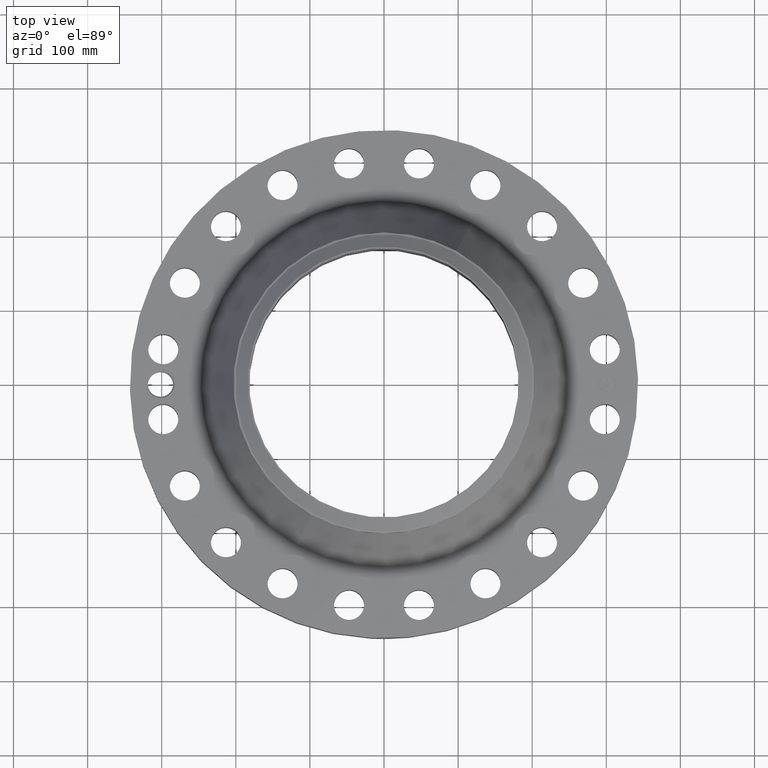
[diagram: clean part render]
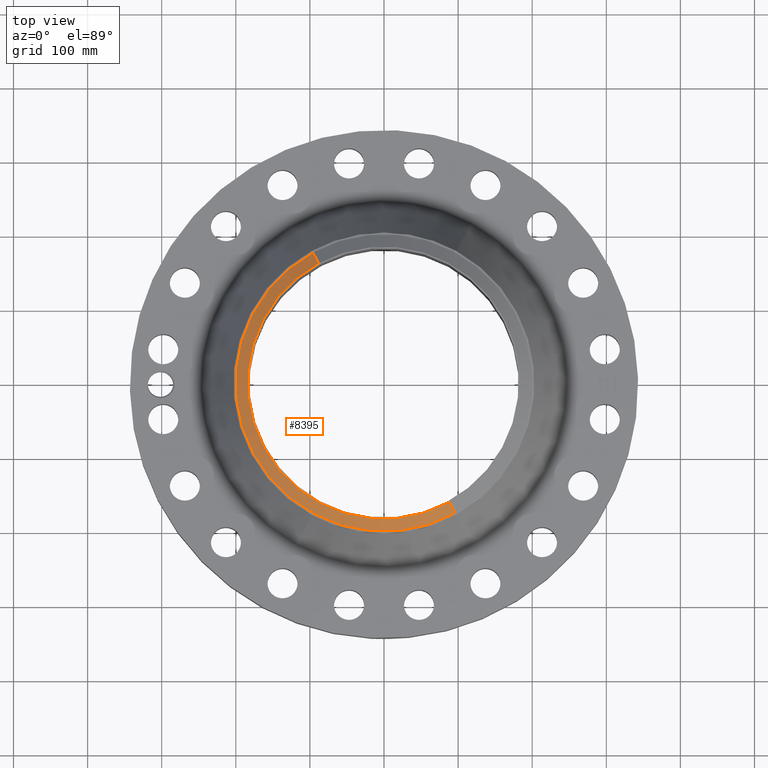
[diagram: same view with one face highlighted and labeled with its STEP entity id]
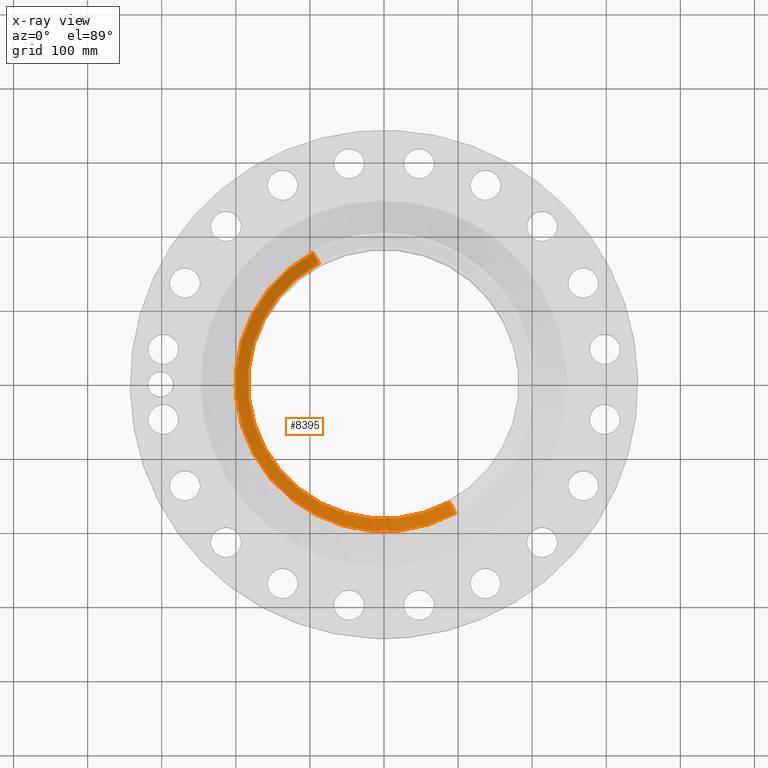
[diagram: x-ray of the same camera — body ghosted, the highlighted face saturated]
A machine part, top view. The second image highlights one B-rep face of the part: STEP entity #8395.
The next image is the same camera in x-ray: the body ghosted, the highlighted face saturated — about 0% of this face is hidden behind the body in this view.
In plain terms, the highlighted conical surface has half-angle 52.5 deg.
Its self-contained STEP definition (entity closure, byte-faithful):
#4817=AXIS2_PLACEMENT_3D('Circle Axis2P3D',#4815,#4816,$) ;
#8368=AXIS2_PLACEMENT_3D('Cone Axis2P3D',#8365,#8366,#8367) ;
#8379=AXIS2_PLACEMENT_3D('Circle Axis2P3D',#8377,#8378,$) ;
#4810=CARTESIAN_POINT('Vertex',(3.46851919668,-6.34908180204,7.25000000003)) ;
#4812=CARTESIAN_POINT('Vertex',(-3.46851919668,6.34908180204,7.25000000003)) ;
#4815=CARTESIAN_POINT('Axis2P3D Location',(0.,0.,7.25000000003)) ;
#8365=CARTESIAN_POINT('Axis2P3D Location',(0.,0.,7.25000000003)) ;
#8370=CARTESIAN_POINT('Line Origine',(-3.62346049923,6.63269995394,7.00201437259)) ;
#8374=CARTESIAN_POINT('Vertex',(-3.77840180178,6.91631810585,6.75402874516)) ;
#8377=CARTESIAN_POINT('Axis2P3D Location',(0.,0.,6.75402874516)) ;
#8381=CARTESIAN_POINT('Vertex',(3.77840180178,-6.91631810585,6.75402874516)) ;
#8384=CARTESIAN_POINT('Line Origine',(3.62346049923,-6.63269995394,7.00201437259)) ;
#4816=DIRECTION('Axis2P3D Direction',(0.,0.,-0.0393700787402)) ;
#8366=DIRECTION('Axis2P3D Direction',(-0.,-0.,-0.0393700787402)) ;
#8367=DIRECTION('Axis2P3D XDirection',(-0.0188750212049,0.0345504945626,0.)) ;
#8371=DIRECTION('Vector Direction',(-0.014974561121,0.02741075027,-0.023966985394)) ;
#8378=DIRECTION('Axis2P3D Direction',(0.,0.,-0.0393700787402)) ;
#8385=DIRECTION('Vector Direction',(0.014974561121,-0.02741075027,-0.023966985394)) ;
#8372=VECTOR('Line Direction',#8371,0.0393700787402) ;
#8386=VECTOR('Line Direction',#8385,0.0393700787402) ;
#8390=ORIENTED_EDGE('',*,*,#4819,.F.) ;
#8391=ORIENTED_EDGE('',*,*,#8376,.T.) ;
#8392=ORIENTED_EDGE('',*,*,#8383,.T.) ;
#8393=ORIENTED_EDGE('',*,*,#8388,.F.) ;
#8395=ADVANCED_FACE('PartBody',(#8394),#8369,.T.) ;
#4818=CIRCLE('generated circle',#4817,7.23474015751) ;
#8380=CIRCLE('generated circle',#8379,7.88110248106) ;
#8369=CONICAL_SURFACE('Cone',#8368,7.23474015751,0.916297857297) ;
#4819=EDGE_CURVE('',#4813,#4811,#4818,.F.) ;
#8376=EDGE_CURVE('',#4813,#8375,#8373,.T.) ;
#8383=EDGE_CURVE('',#8375,#8382,#8380,.F.) ;
#8388=EDGE_CURVE('',#4811,#8382,#8387,.T.) ;
#8389=EDGE_LOOP('',(#8390,#8391,#8392,#8393)) ;
#8394=FACE_OUTER_BOUND('',#8389,.T.) ;
#8373=LINE('Line',#8370,#8372) ;
#8387=LINE('Line',#8384,#8386) ;
#4811=VERTEX_POINT('',#4810) ;
#4813=VERTEX_POINT('',#4812) ;
#8375=VERTEX_POINT('',#8374) ;
#8382=VERTEX_POINT('',#8381) ;